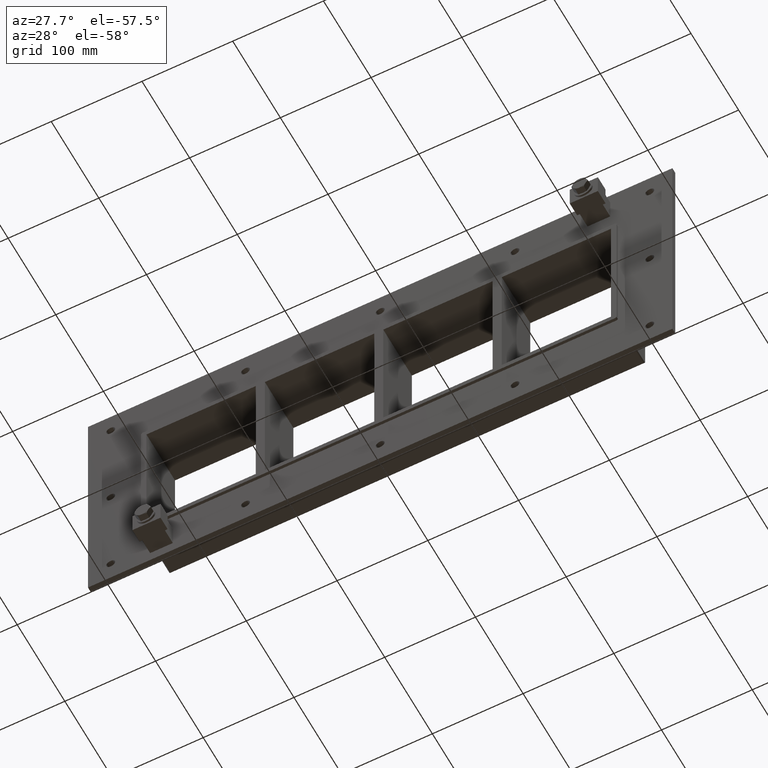
[diagram: clean part render]
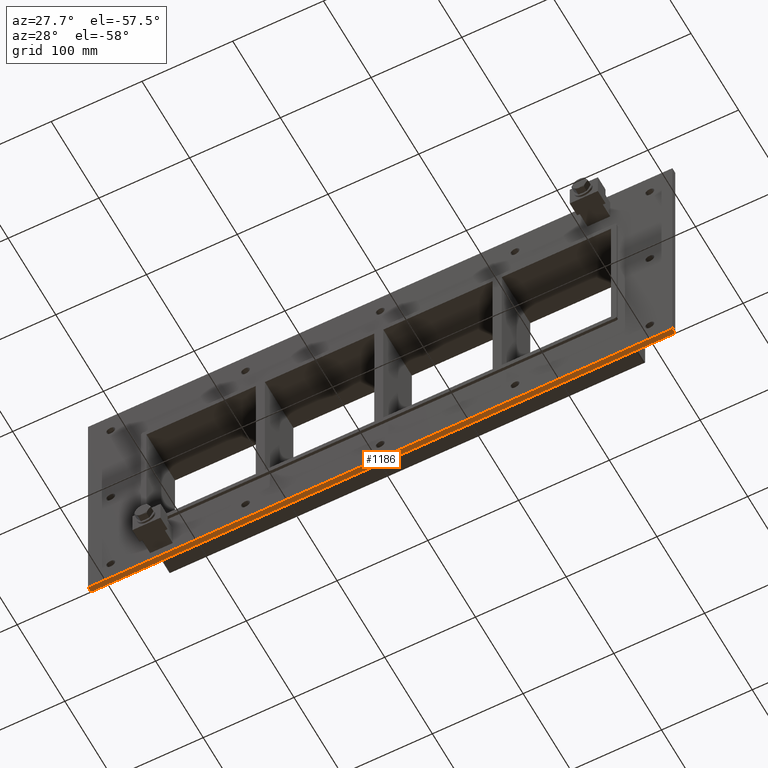
[diagram: same view with one face highlighted and labeled with its STEP entity id]
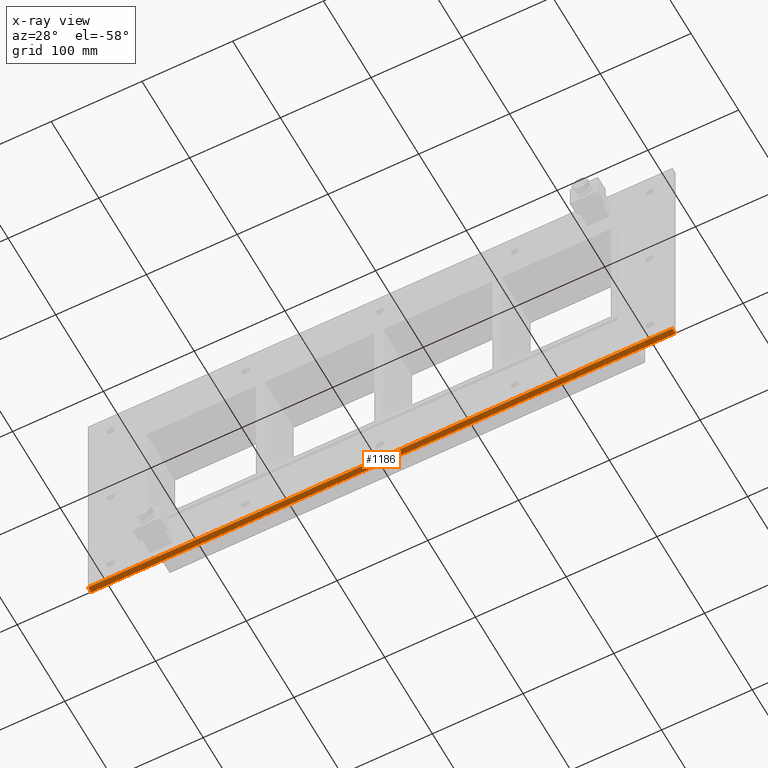
[diagram: x-ray of the same camera — body ghosted, the highlighted face saturated]
A machine part, auxiliary view. The second image highlights one B-rep face of the part: STEP entity #1186.
The next image is the same camera in x-ray: the body ghosted, the highlighted face saturated — about 0% of this face is hidden behind the body in this view.
In plain terms, the highlighted planar face has unit normal (0, 0, -1).
Its self-contained STEP definition (entity closure, byte-faithful):
#871=CARTESIAN_POINT('',(322.0,6.000000000000001,-145.74999999999997));
#872=VERTEX_POINT('',#871);
#879=CARTESIAN_POINT('',(-322.0,6.000000000000001,-145.74999999999997));
#880=VERTEX_POINT('',#879);
#881=CARTESIAN_POINT('',(321.99999999999994,6.000000000000001,-145.74999999999994));
#882=DIRECTION('',(-1.0,0.0,0.0));
#883=VECTOR('',#882,644.0);
#884=LINE('',#881,#883);
#885=EDGE_CURVE('',#872,#880,#884,.T.);
#1017=CARTESIAN_POINT('',(-322.0,0.0,-145.74999999999994));
#1018=VERTEX_POINT('',#1017);
#1025=CARTESIAN_POINT('',(321.99999999999994,0.0,-145.74999999999994));
#1026=VERTEX_POINT('',#1025);
#1027=CARTESIAN_POINT('',(321.99999999999994,0.0,-145.74999999999994));
#1028=DIRECTION('',(-1.0,0.0,0.0));
#1029=VECTOR('',#1028,644.0);
#1030=LINE('',#1027,#1029);
#1031=EDGE_CURVE('',#1026,#1018,#1030,.T.);
#1161=CARTESIAN_POINT('',(-322.0,0.0,-145.74999999999994));
#1162=DIRECTION('',(0.0,1.0,0.0));
#1163=VECTOR('',#1162,6.000000000000001);
#1164=LINE('',#1161,#1163);
#1165=EDGE_CURVE('',#1018,#880,#1164,.T.);
#1170=CARTESIAN_POINT('',(321.99999999999994,0.0,-145.74999999999994));
#1171=DIRECTION('',(0.0,0.0,-1.0));
#1172=DIRECTION('',(-1.0,0.0,0.0));
#1173=AXIS2_PLACEMENT_3D('',#1170,#1171,#1172);
#1174=PLANE('',#1173);
#1175=ORIENTED_EDGE('',*,*,#1031,.T.);
#1176=ORIENTED_EDGE('',*,*,#1165,.T.);
#1177=ORIENTED_EDGE('',*,*,#885,.F.);
#1178=CARTESIAN_POINT('',(321.99999999999994,0.0,-145.74999999999994));
#1179=DIRECTION('',(0.0,1.0,0.0));
#1180=VECTOR('',#1179,6.000000000000001);
#1181=LINE('',#1178,#1180);
#1182=EDGE_CURVE('',#1026,#872,#1181,.T.);
#1183=ORIENTED_EDGE('',*,*,#1182,.F.);
#1184=EDGE_LOOP('',(#1175,#1176,#1177,#1183));
#1185=FACE_OUTER_BOUND('',#1184,.T.);
#1186=ADVANCED_FACE('',(#1185),#1174,.T.);